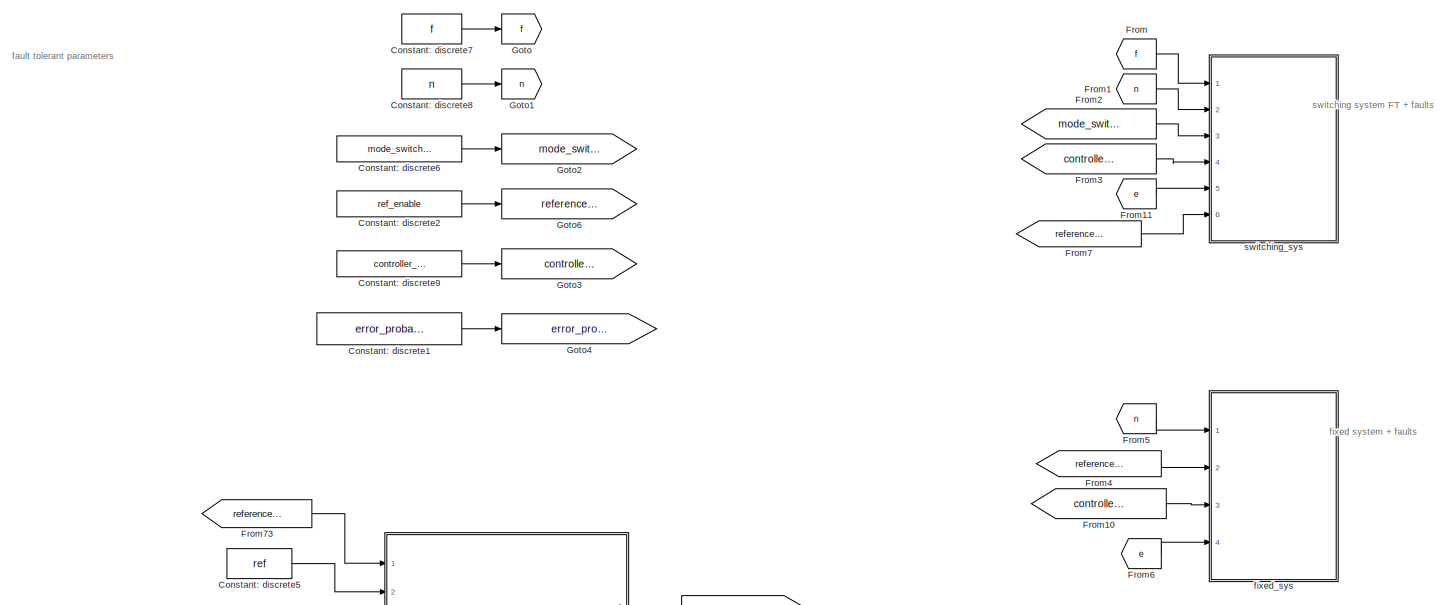
[diagram: root canvas - part 1/2, full width, top band]
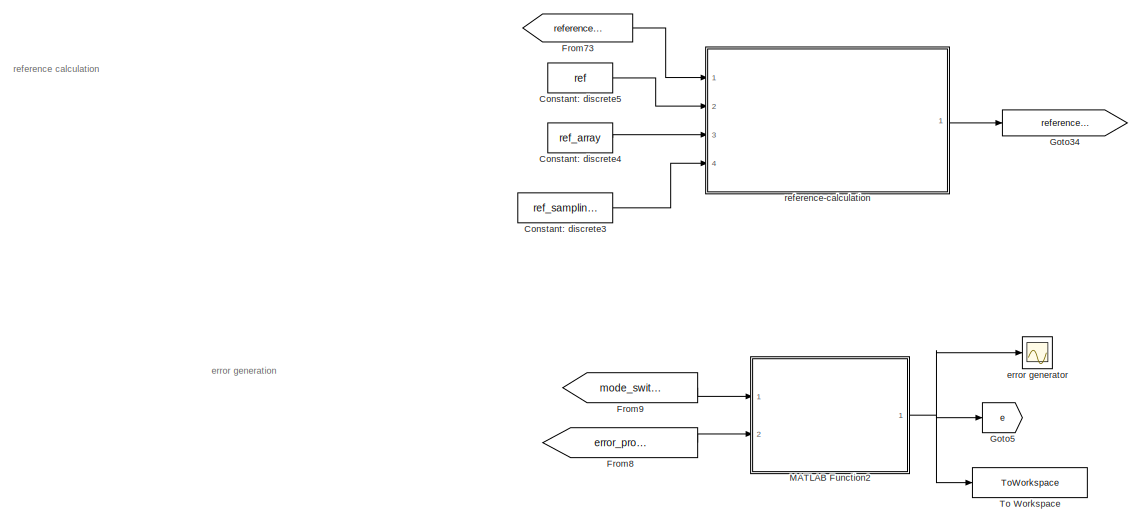
[diagram: root canvas - part 2/2, bottom left region]
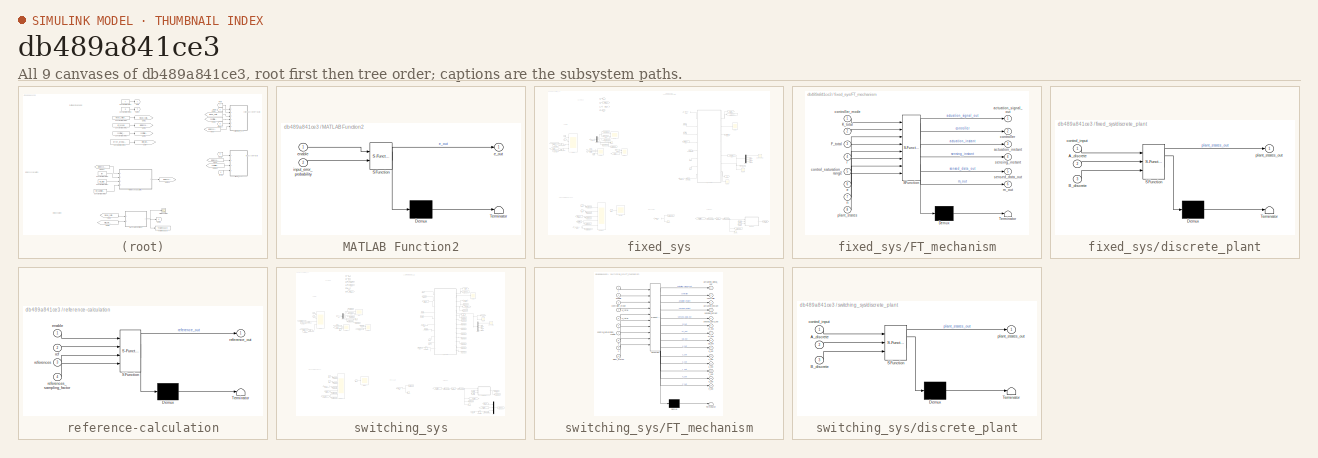
[diagram: thumbnail index - all 9 canvases of the model, root first then tree order]
MODEL slx_db489a841ce3
KIND model
CONFIG AbsTol = auto
CONFIG EnableMultiTasking = off
CONFIG FixedStep = hp
CONFIG MaxStep = auto
CONFIG MinStep = auto
CONFIG RelTol = 1e-3
CONFIG SampleTimeConstraint = Unconstrained
CONFIG SolverName = FixedStepAuto
CONFIG StartTime = 0.0
CONFIG StopTime = Tend
BLOCK [Constant] Constant: discrete1
  SampleTime = Sm
  Value = error_probability
BLOCK [Constant] Constant: discrete2
  SampleTime = Sm
  Value = ref_enable
BLOCK [Constant] Constant: discrete3
  OutDataTypeStr = single
  SampleTime = Sm
  Value = ref_sampling_factor
BLOCK [Constant] Constant: discrete4
  OutDataTypeStr = single
  SampleTime = Sm
  Value = ref_array
BLOCK [Constant] Constant: discrete5
  OutDataTypeStr = single
  SampleTime = Sm
  Value = ref
BLOCK [Constant] Constant: discrete6
  SampleTime = Sm
  Value = mode_switching_enable
BLOCK [Constant] Constant: discrete7
  OutDataTypeStr = single
  SampleTime = Sm
  Value = f
BLOCK [Constant] Constant: discrete8
  OutDataTypeStr = single
  SampleTime = Sm
  Value = n
BLOCK [Constant] Constant: discrete9
  SampleTime = Sm
  Value = controller_mode
BLOCK [From] From
  GotoTag = f
BLOCK [From] From1
  GotoTag = n
BLOCK [From] From10
  GotoTag = controller_mode
BLOCK [From] From11
  GotoTag = e
BLOCK [From] From2
  GotoTag = mode_switching_enable
BLOCK [From] From3
  GotoTag = controller_mode
BLOCK [From] From4
  GotoTag = reference_output
BLOCK [From] From5
  GotoTag = n
BLOCK [From] From6
  GotoTag = e
BLOCK [From] From7
  GotoTag = reference_output
BLOCK [From] From73
  GotoTag = reference_enable
BLOCK [From] From8
  GotoTag = error_probability
BLOCK [From] From9
  GotoTag = mode_switching_enable
BLOCK [Goto] Goto
  GotoTag = f
BLOCK [Goto] Goto1
  GotoTag = n
BLOCK [Goto] Goto2
  GotoTag = mode_switching_enable
BLOCK [Goto] Goto3
  GotoTag = controller_mode
BLOCK [Goto] Goto34
  GotoTag = reference_output
BLOCK [Goto] Goto4
  GotoTag = error_probability
BLOCK [Goto] Goto5
  GotoTag = e
BLOCK [Goto] Goto6
  GotoTag = reference_enable
BLOCK [SubSystem] MATLAB Function2
  ErrorFcn = Stateflow.Translate.translate
  PermitHierarchicalResolution = ExplicitOnly
  Ports = [2, 1]
  RequestExecContextInheritance = off
  SFBlockType = MATLAB Function
  SystemSampleTime = Sm
  TreatAsAtomicUnit = on
BLOCK [Demux] MATLAB Function2/ Demux 
  Outputs = 1
  Ports = [1, 1]
BLOCK [S-Function] MATLAB Function2/ SFunction 
  EnableBusSupport = on
  FunctionName = sf_sfun
  PortCounts = [2 2]
  Ports = [2, 2]
  SFcnIsStateOwnerBlock = off
  SFunctionDeploymentMode = off
  Tag = Stateflow S-Function 21
BLOCK [Terminator] MATLAB Function2/ Terminator 
BLOCK [Outport] MATLAB Function2/e_out
  VectorParamsAs1DForOutWhenUnconnected = off
BLOCK [Inport] MATLAB Function2/enable
BLOCK [Inport] MATLAB Function2/input_error_probability
  Port = 2
BLOCK [ToWorkspace] To Workspace
  FixptAsFi = on
  MaxDataPoints = inf
  Ports = [1]
  SampleTime = Sm
  SaveFormat = Timeseries
  VariableName = error_input_sequence
BLOCK [Scope] error generator 
  Floating = off
  NumInputPorts = 1
  Ports = [1]
  ScopeSpecificationString = Simulink.scopes.TimeScopeBlockCfg('CurrentConfiguration', extmgr.ConfigurationSet(extmgr.Configuration('Core','General UI',true),extmgr.Configuration('Core','Source UI',true),extmgr.Configuration('Sources','WiredSimulink',true,'DataLoggingVariableName','ScopeData2'),extmgr.Configuration('Visuals','Time Domain',true,'SerializedDisplays',{struct('MinYLimReal','-0.10658','MaxYLimReal','1.125','YLabel...<+1469ch>
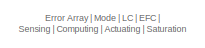
[diagram: fixed_sys - part 1/9, top center region]
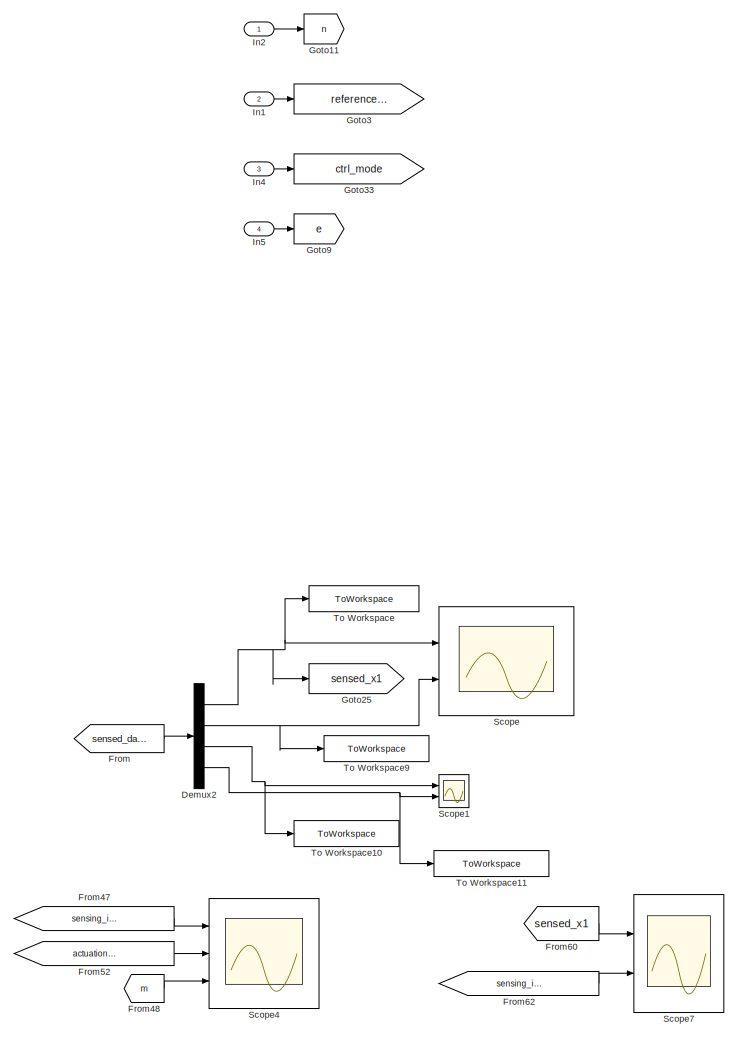
[diagram: fixed_sys - part 2/9, top left region]
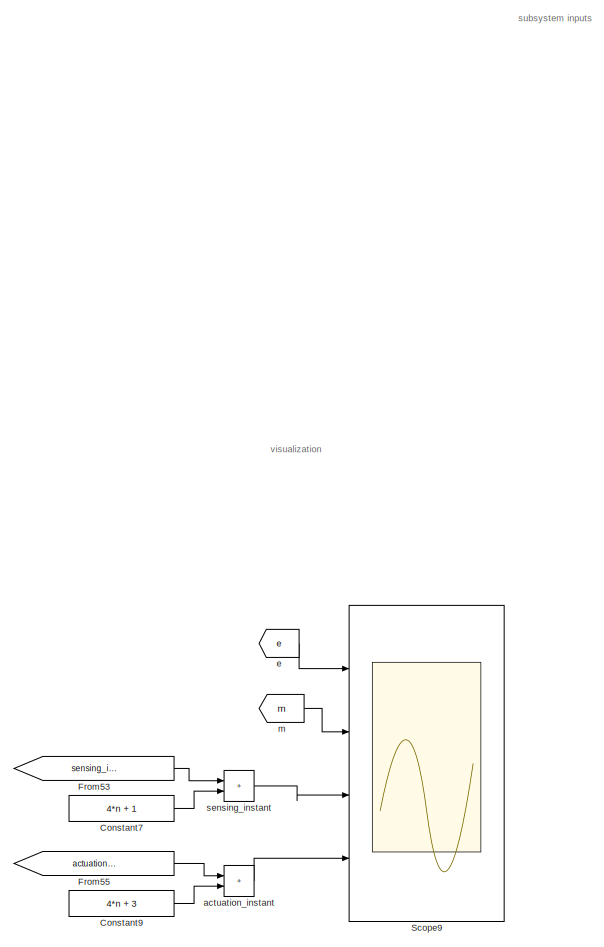
[diagram: fixed_sys - part 3/9, top left region]
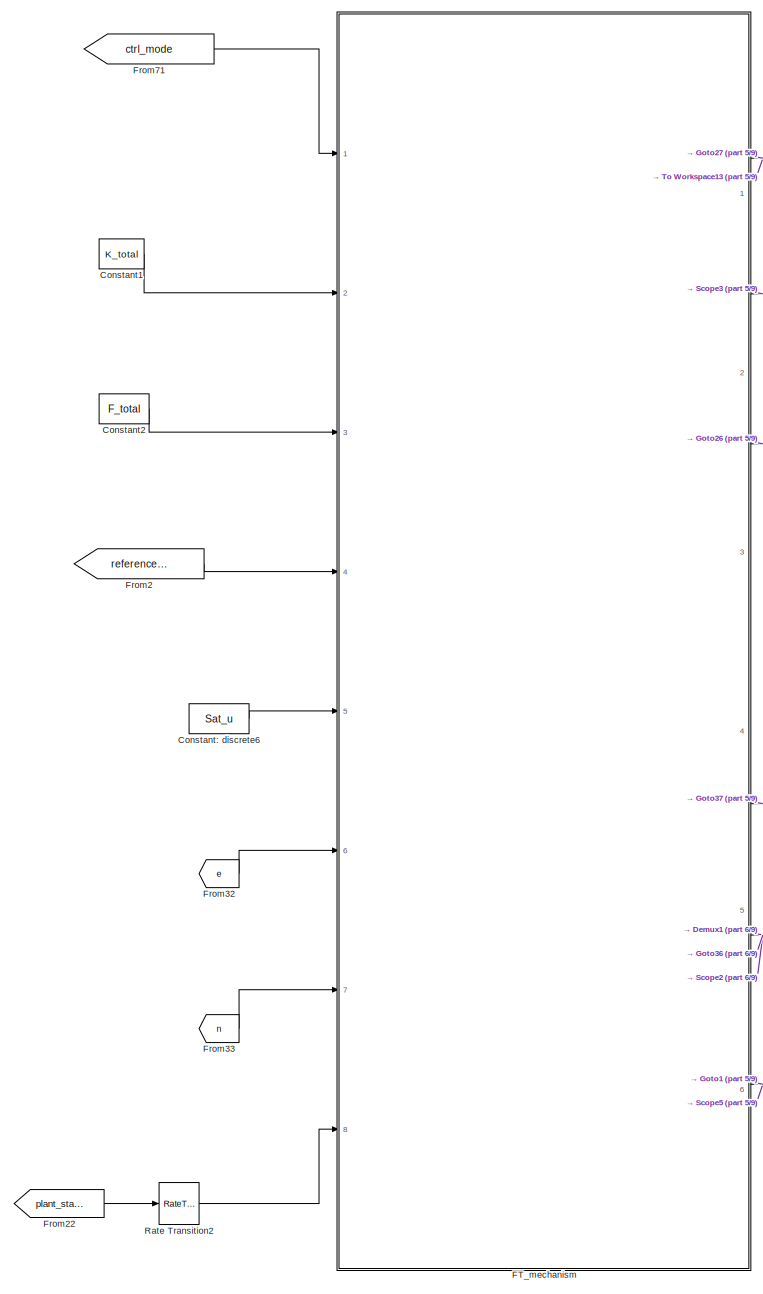
[diagram: fixed_sys - part 4/9, middle right region]
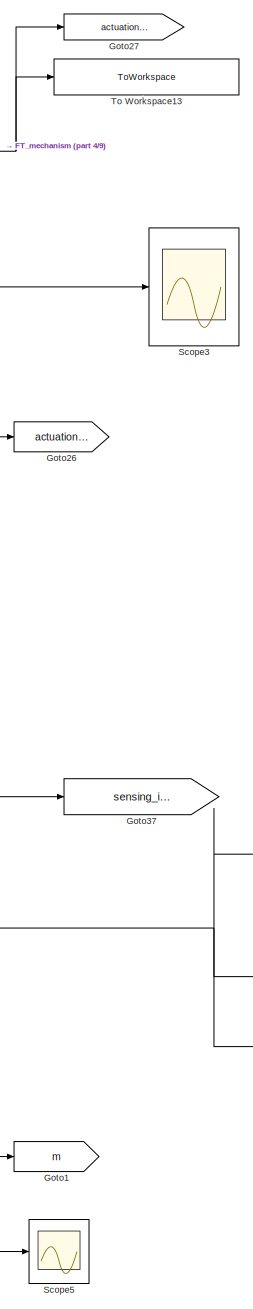
[diagram: fixed_sys - part 5/9, middle right region]
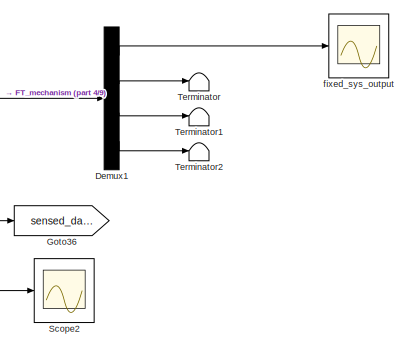
[diagram: fixed_sys - part 6/9, middle right region]
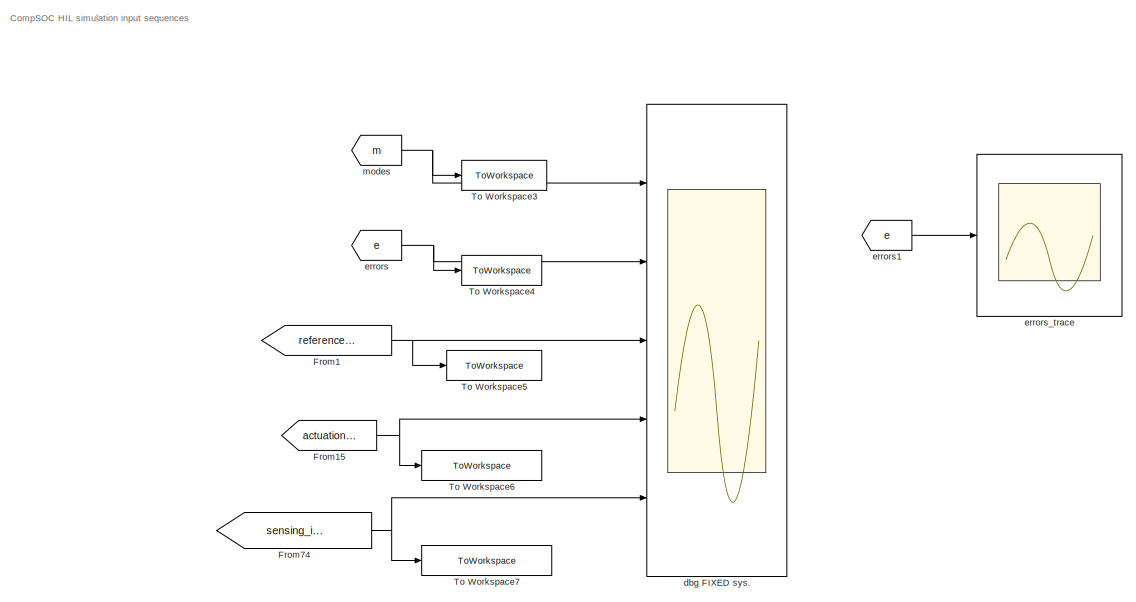
[diagram: fixed_sys - part 7/9, bottom left region]
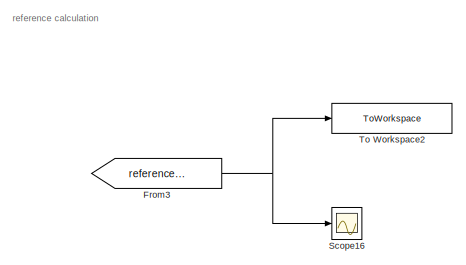
[diagram: fixed_sys - part 8/9, bottom center region]
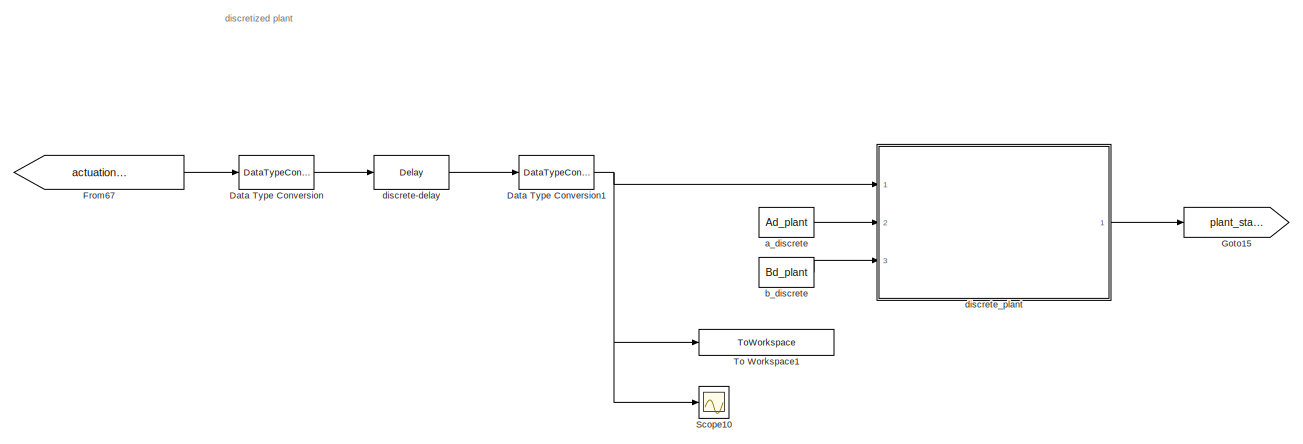
[diagram: fixed_sys - part 9/9, bottom right region]
BLOCK [SubSystem] fixed_sys
  Ports = [4]
  RequestExecContextInheritance = off
BLOCK [Constant] fixed_sys/Constant1
  OutDataTypeStr = single
  SampleTime = Sm
  Value = K_total
BLOCK [Constant] fixed_sys/Constant2
  OutDataTypeStr = single
  SampleTime = Sm
  Value = F_total
BLOCK [Constant] fixed_sys/Constant7
  SampleTime = Sm
  Value = 4*n + 1
BLOCK [Constant] fixed_sys/Constant9
  SampleTime = Sm
  Value = 4*n + 3
BLOCK [Constant] fixed_sys/Constant: discrete6
  OutDataTypeStr = single
  SampleTime = Sm
  Value = Sat_u
BLOCK [DataTypeConversion] fixed_sys/Data Type Conversion
  OutDataTypeStr = double
  RndMeth = Floor
  SaturateOnIntegerOverflow = off
BLOCK [DataTypeConversion] fixed_sys/Data Type Conversion1
  OutDataTypeStr = single
  RndMeth = Floor
  SaturateOnIntegerOverflow = off
BLOCK [Demux] fixed_sys/Demux1
  Ports = [1, 4]
BLOCK [Demux] fixed_sys/Demux2
  Ports = [1, 4]
BLOCK [SubSystem] fixed_sys/FT_mechanism
  ErrorFcn = Stateflow.Translate.translate
  PermitHierarchicalResolution = ExplicitOnly
  Ports = [8, 6]
  RequestExecContextInheritance = off
  SFBlockType = MATLAB Function
  TreatAsAtomicUnit = on
BLOCK [Demux] fixed_sys/FT_mechanism/ Demux 
  Outputs = 1
  Ports = [1, 1]
BLOCK [S-Function] fixed_sys/FT_mechanism/ SFunction 
  EnableBusSupport = on
  FunctionName = sf_sfun
  PortCounts = [8 7]
  Ports = [8, 7]
  SFcnIsStateOwnerBlock = off
  SFunctionDeploymentMode = off
  Tag = Stateflow S-Function 1
BLOCK [Terminator] fixed_sys/FT_mechanism/ Terminator 
BLOCK [Inport] fixed_sys/FT_mechanism/F_total
  Port = 3
BLOCK [Inport] fixed_sys/FT_mechanism/K_total
  Port = 2
BLOCK [Outport] fixed_sys/FT_mechanism/actuation_instant
  Port = 3
  VectorParamsAs1DForOutWhenUnconnected = off
BLOCK [Outport] fixed_sys/FT_mechanism/actuation_signal_out
  VectorParamsAs1DForOutWhenUnconnected = off
BLOCK [Inport] fixed_sys/FT_mechanism/control_saturation_range
  Port = 5
BLOCK [Outport] fixed_sys/FT_mechanism/controller
  Port = 2
  VectorParamsAs1DForOutWhenUnconnected = off
BLOCK [Inport] fixed_sys/FT_mechanism/controller_mode
BLOCK [Inport] fixed_sys/FT_mechanism/e
  Port = 6
BLOCK [Outport] fixed_sys/FT_mechanism/m_out
  Port = 6
  VectorParamsAs1DForOutWhenUnconnected = off
BLOCK [Inport] fixed_sys/FT_mechanism/n
  Port = 7
BLOCK [Inport] fixed_sys/FT_mechanism/plant_states
  Port = 8
BLOCK [Inport] fixed_sys/FT_mechanism/r
  Port = 4
BLOCK [Outport] fixed_sys/FT_mechanism/sensed_data_out
  Port = 5
  VectorParamsAs1DForOutWhenUnconnected = off
BLOCK [Outport] fixed_sys/FT_mechanism/sensing_instant
  Port = 4
  VectorParamsAs1DForOutWhenUnconnected = off
BLOCK [From] fixed_sys/From
  GotoTag = sensed_data
BLOCK [From] fixed_sys/From1
  GotoTag = reference_input
BLOCK [From] fixed_sys/From15
  GotoTag = actuation_instant
BLOCK [From] fixed_sys/From2
  GotoTag = reference_input
BLOCK [From] fixed_sys/From22
  GotoTag = plant_states
BLOCK [From] fixed_sys/From3
  GotoTag = reference_input
BLOCK [From] fixed_sys/From32
  GotoTag = e
BLOCK [From] fixed_sys/From33
  GotoTag = n
BLOCK [From] fixed_sys/From47
  GotoTag = sensing_instant
BLOCK [From] fixed_sys/From48
  GotoTag = m
BLOCK [From] fixed_sys/From52
  GotoTag = actuation_instant
BLOCK [From] fixed_sys/From53
  GotoTag = sensing_instant
BLOCK [From] fixed_sys/From55
  GotoTag = actuation_instant
BLOCK [From] fixed_sys/From60
  GotoTag = sensed_x1
BLOCK [From] fixed_sys/From62
  GotoTag = sensing_instant
BLOCK [From] fixed_sys/From67
  GotoTag = actuation_signal
BLOCK [From] fixed_sys/From71
  GotoTag = ctrl_mode
BLOCK [From] fixed_sys/From74
  GotoTag = sensing_instant
BLOCK [Goto] fixed_sys/Goto1
  GotoTag = m
BLOCK [Goto] fixed_sys/Goto11
  GotoTag = n
BLOCK [Goto] fixed_sys/Goto15
  GotoTag = plant_states
BLOCK [Goto] fixed_sys/Goto25
  GotoTag = sensed_x1
BLOCK [Goto] fixed_sys/Goto26
  GotoTag = actuation_instant
BLOCK [Goto] fixed_sys/Goto27
  GotoTag = actuation_signal
BLOCK [Goto] fixed_sys/Goto3
  GotoTag = reference_input
BLOCK [Goto] fixed_sys/Goto33
  GotoTag = ctrl_mode
BLOCK [Goto] fixed_sys/Goto36
  GotoTag = sensed_data
BLOCK [Goto] fixed_sys/Goto37
  GotoTag = sensing_instant
BLOCK [Goto] fixed_sys/Goto9
  GotoTag = e
BLOCK [Inport] fixed_sys/In1
  Port = 2
BLOCK [Inport] fixed_sys/In2
BLOCK [Inport] fixed_sys/In4
  Port = 3
BLOCK [Inport] fixed_sys/In5
  Port = 4
BLOCK [RateTransition] fixed_sys/Rate Transition2
  OutPortSampleTime = Sm
BLOCK [Scope] fixed_sys/Scope
  Floating = off
  NumInputPorts = 2
  Ports = [2]
  ScopeSpecificationString = Simulink.scopes.TimeScopeBlockCfg('CurrentConfiguration', extmgr.ConfigurationSet(extmgr.Configuration('Core','General UI',true),extmgr.Configuration('Core','Source UI',true),extmgr.Configuration('Sources','WiredSimulink',true,'DataLoggingVariableName','ScopeData1'),extmgr.Configuration('Visuals','Time Domain',true,'SerializedDisplays',{struct('MinYLimReal','-0.04015','MaxYLimReal','0.06015','YLab...<+1471ch>
BLOCK [Scope] fixed_sys/Scope1
  Floating = off
  NumInputPorts = 2
  Ports = [2]
  ScopeSpecificationString = Simulink.scopes.TimeScopeBlockCfg('CurrentConfiguration', extmgr.ConfigurationSet(extmgr.Configuration('Core','General UI',true),extmgr.Configuration('Core','Source UI',true),extmgr.Configuration('Sources','WiredSimulink',true,'DataLoggingVariableName','ScopeData2'),extmgr.Configuration('Visuals','Time Domain',true,'SerializedDisplays',{struct('MinYLimReal','-3499.84616','MaxYLimReal','3633.94748'...<+1444ch>
BLOCK [Scope] fixed_sys/Scope10
  Floating = off
  NumInputPorts = 1
  Ports = [1]
  ScopeSpecificationString = Simulink.scopes.TimeScopeBlockCfg('CurrentConfiguration', extmgr.ConfigurationSet(extmgr.Configuration('Core','General UI',true),extmgr.Configuration('Core','Source UI',true),extmgr.Configuration('Sources','WiredSimulink',true,'DataLoggingVariableName','ScopeData2','SampleTime','S(controller_mode)'),extmgr.Configuration('Visuals','Time Domain',true,'SerializedDisplays',{struct('MinYLimReal','-0.35...<+1487ch>
BLOCK [Scope] fixed_sys/Scope16
  Floating = off
  NumInputPorts = 1
  Ports = [1]
  ScopeSpecificationString = Simulink.scopes.TimeScopeBlockCfg('CurrentConfiguration', extmgr.ConfigurationSet(extmgr.Configuration('Core','General UI',true),extmgr.Configuration('Core','Source UI',true),extmgr.Configuration('Sources','WiredSimulink',true,'DataLoggingVariableName','ScopeData1'),extmgr.Configuration('Visuals','Time Domain',true,'SerializedDisplays',{struct('MinYLimReal','-1.375','MaxYLimReal','2.375','YLabelRe...<+1388ch>
BLOCK [Scope] fixed_sys/Scope2
  Floating = off
  NumInputPorts = 1
  Ports = [1]
  ScopeSpecificationString = Simulink.scopes.TimeScopeBlockCfg('CurrentConfiguration', extmgr.ConfigurationSet(extmgr.Configuration('Core','General UI',true),extmgr.Configuration('Core','Source UI',true),extmgr.Configuration('Sources','WiredSimulink',true,'DataLoggingVariableName','ScopeData1'),extmgr.Configuration('Visuals','Time Domain',true,'SerializedDisplays',{struct('MinYLimReal','-0.61443','MaxYLimReal','0.39931','YLab...<+1561ch>
BLOCK [Scope] fixed_sys/Scope3
  Floating = off
  NumInputPorts = 1
  Ports = [1]
  ScopeSpecificationString = Simulink.scopes.TimeScopeBlockCfg('CurrentConfiguration', extmgr.ConfigurationSet(extmgr.Configuration('Core','General UI',true),extmgr.Configuration('Core','Source UI',true),extmgr.Configuration('Sources','WiredSimulink',true,'DataLoggingVariableName','ScopeData3'),extmgr.Configuration('Visuals','Time Domain',true,'SerializedDisplays',{struct('MinYLimReal','0.9','MaxYLimReal','1.1','YLabelReal','...<+1406ch>
BLOCK [Scope] fixed_sys/Scope4
  Floating = off
  NumInputPorts = 3
  Ports = [3]
  ScopeSpecificationString = Simulink.scopes.TimeScopeBlockCfg('CurrentConfiguration', extmgr.ConfigurationSet(extmgr.Configuration('Core','General UI',true),extmgr.Configuration('Core','Source UI',true),extmgr.Configuration('Sources','WiredSimulink',true,'DataLoggingVariableName','ScopeData1'),extmgr.Configuration('Visuals','Time Domain',true,'SerializedDisplays',{struct('MinYLimReal','-0.375','MaxYLimReal','3.375','YLabelRe...<+1489ch>
BLOCK [Scope] fixed_sys/Scope5
  Floating = off
  NumInputPorts = 1
  Ports = [1]
  ScopeSpecificationString = Simulink.scopes.TimeScopeBlockCfg('CurrentConfiguration', extmgr.ConfigurationSet(extmgr.Configuration('Core','General UI',true),extmgr.Configuration('Core','Source UI',true),extmgr.Configuration('Sources','WiredSimulink',true,'DataLoggingVariableName','ScopeData1'),extmgr.Configuration('Visuals','Time Domain',true,'SerializedDisplays',{struct('MinYLimReal','2.00000','MaxYLimReal','4.00000','YLabe...<+1448ch>
BLOCK [Scope] fixed_sys/Scope7
  Floating = off
  NumInputPorts = 2
  Ports = [2]
  ScopeSpecificationString = Simulink.scopes.TimeScopeBlockCfg('CurrentConfiguration', extmgr.ConfigurationSet(extmgr.Configuration('Core','General UI',true),extmgr.Configuration('Core','Source UI',true),extmgr.Configuration('Sources','WiredSimulink',true,'DataLoggingVariableName','ScopeData1'),extmgr.Configuration('Visuals','Time Domain',true,'SerializedDisplays',{struct('MinYLimReal','-0.15888','MaxYLimReal','1.12876','YLab...<+1478ch>
BLOCK [Scope] fixed_sys/Scope9
  Floating = off
  NumInputPorts = 4
  Ports = [4]
  ScopeSpecificationString = Simulink.scopes.TimeScopeBlockCfg('CurrentConfiguration', extmgr.ConfigurationSet(extmgr.Configuration('Core','General UI',true),extmgr.Configuration('Core','Source UI',true),extmgr.Configuration('Sources','WiredSimulink',true,'DataLoggingVariableName','ScopeData1'),extmgr.Configuration('Visuals','Time Domain',true,'SerializedDisplays',{struct('MinYLimReal','-2.00000','MaxYLimReal','18.00000','YLa...<+1520ch>
BLOCK [Terminator] fixed_sys/Terminator
BLOCK [Terminator] fixed_sys/Terminator1
BLOCK [Terminator] fixed_sys/Terminator2
BLOCK [ToWorkspace] fixed_sys/To Workspace
  FixptAsFi = on
  MaxDataPoints = inf
  Ports = [1]
  SampleTime = Sm
  SaveFormat = Timeseries
  VariableName = sensed_data_x1_fixed
BLOCK [ToWorkspace] fixed_sys/To Workspace1
  FixptAsFi = on
  MaxDataPoints = inf
  Ports = [1]
  SampleTime = Sm
  SaveFormat = Timeseries
  VariableName = actuation_signal_u_fixed
BLOCK [ToWorkspace] fixed_sys/To Workspace10
  FixptAsFi = on
  MaxDataPoints = inf
  Ports = [1]
  SampleTime = Sm
  SaveFormat = Timeseries
  VariableName = sensed_data_x3_fixed
BLOCK [ToWorkspace] fixed_sys/To Workspace11
  FixptAsFi = on
  MaxDataPoints = inf
  Ports = [1]
  SampleTime = Sm
  SaveFormat = Timeseries
  VariableName = sensed_data_x4_fixed
BLOCK [ToWorkspace] fixed_sys/To Workspace13
  FixptAsFi = on
  MaxDataPoints = inf
  Ports = [1]
  SampleTime = Sm
  SaveFormat = Timeseries
  VariableName = actuation_signal_fixed
BLOCK [ToWorkspace] fixed_sys/To Workspace2
  FixptAsFi = on
  MaxDataPoints = inf
  Ports = [1]
  SampleTime = Sm
  SaveFormat = Timeseries
  VariableName = reference_output_fixed
BLOCK [ToWorkspace] fixed_sys/To Workspace3
  FixptAsFi = on
  MaxDataPoints = inf
  Ports = [1]
  SampleTime = Sm
  SaveFormat = Timeseries
  VariableName = ws_modes_fixed
BLOCK [ToWorkspace] fixed_sys/To Workspace4
  FixptAsFi = on
  MaxDataPoints = inf
  Ports = [1]
  SampleTime = Sm
  SaveFormat = Timeseries
  VariableName = ws_errors_fixed
BLOCK [ToWorkspace] fixed_sys/To Workspace5
  FixptAsFi = on
  MaxDataPoints = inf
  Ports = [1]
  SampleTime = Sm
  SaveFormat = Timeseries
  VariableName = ws_reference_fixed
BLOCK [ToWorkspace] fixed_sys/To Workspace6
  FixptAsFi = on
  MaxDataPoints = inf
  Ports = [1]
  SampleTime = Sm
  SaveFormat = Timeseries
  VariableName = ws_actuation_instant_fixed
BLOCK [ToWorkspace] fixed_sys/To Workspace7
  FixptAsFi = on
  MaxDataPoints = inf
  Ports = [1]
  SampleTime = Sm
  SaveFormat = Timeseries
  VariableName = ws_sensing_instant_fixed
BLOCK [ToWorkspace] fixed_sys/To Workspace9
  FixptAsFi = on
  MaxDataPoints = inf
  Ports = [1]
  SampleTime = Sm
  SaveFormat = Timeseries
  VariableName = sensed_data_x2_fixed
BLOCK [Constant] fixed_sys/a_discrete
  OutDataTypeStr = single
  SampleTime = hp
  Value = Ad_plant
BLOCK [Sum] fixed_sys/actuation_instant
  IconShape = rectangular
  Ports = [2, 1]
BLOCK [Constant] fixed_sys/b_discrete
  OutDataTypeStr = single
  SampleTime = hp
  Value = Bd_plant
BLOCK [Scope] fixed_sys/dbg FIXED sys.
  Floating = off
  NumInputPorts = 5
  Ports = [5]
  ScopeSpecificationString = Simulink.scopes.TimeScopeBlockCfg('CurrentConfiguration', extmgr.ConfigurationSet(extmgr.Configuration('Core','General UI',true),extmgr.Configuration('Core','Source UI',true),extmgr.Configuration('Sources','WiredSimulink',true,'DataLoggingVariableName','ScopeData1'),extmgr.Configuration('Visuals','Time Domain',true,'SerializedDisplays',{struct('MinYLimReal','-0.24372','MaxYLimReal','2.35116','YLab...<+1644ch>
BLOCK [Delay] fixed_sys/discrete-delay
  DelayLength = delay_length
  InputPortMap = u0
  Ports = [1, 1]
  SampleTime = hp
BLOCK [SubSystem] fixed_sys/discrete_plant
  ErrorFcn = Stateflow.Translate.translate
  PermitHierarchicalResolution = ExplicitOnly
  Ports = [3, 1]
  RequestExecContextInheritance = off
  SFBlockType = MATLAB Function
  SystemSampleTime = hp
  TreatAsAtomicUnit = on
BLOCK [Demux] fixed_sys/discrete_plant/ Demux 
  Outputs = 1
  Ports = [1, 1]
BLOCK [S-Function] fixed_sys/discrete_plant/ SFunction 
  EnableBusSupport = on
  FunctionName = sf_sfun
  PortCounts = [3 2]
  Ports = [3, 2]
  SFcnIsStateOwnerBlock = off
  SFunctionDeploymentMode = off
  Tag = Stateflow S-Function 2
BLOCK [Terminator] fixed_sys/discrete_plant/ Terminator 
BLOCK [Inport] fixed_sys/discrete_plant/A_discrete
  Port = 2
BLOCK [Inport] fixed_sys/discrete_plant/B_discrete
  Port = 3
BLOCK [Inport] fixed_sys/discrete_plant/control_input
BLOCK [Outport] fixed_sys/discrete_plant/plant_states_out
  VectorParamsAs1DForOutWhenUnconnected = off
BLOCK [From] fixed_sys/e
  GotoTag = e
BLOCK [From] fixed_sys/errors
  GotoTag = e
BLOCK [From] fixed_sys/errors1
  GotoTag = e
BLOCK [Scope] fixed_sys/errors_trace
  Floating = off
  NumInputPorts = 1
  Ports = [1]
  ScopeSpecificationString = Simulink.scopes.TimeScopeBlockCfg('CurrentConfiguration', extmgr.ConfigurationSet(extmgr.Configuration('Core','General UI',true),extmgr.Configuration('Core','Source UI',true),extmgr.Configuration('Sources','WiredSimulink',true,'DataLoggingVariableName','ScopeData1'),extmgr.Configuration('Visuals','Time Domain',true,'SerializedDisplays',{struct('MinYLimReal','-0.125','MaxYLimReal','1.125','YLabelRe...<+1444ch>
BLOCK [Scope] fixed_sys/fixed_sys_output 
  Floating = off
  NumInputPorts = 1
  Ports = [1]
  ScopeSpecificationString = Simulink.scopes.TimeScopeBlockCfg('CurrentConfiguration', extmgr.ConfigurationSet(extmgr.Configuration('Core','General UI',true),extmgr.Configuration('Core','Source UI',true),extmgr.Configuration('Sources','WiredSimulink',true,'DataLoggingVariableName','ScopeData1'),extmgr.Configuration('Visuals','Time Domain',true,'SerializedDisplays',{struct('MinYLimReal','-67.91508','MaxYLimReal','78.67006','YL...<+1483ch>
BLOCK [From] fixed_sys/m
  GotoTag = m
BLOCK [From] fixed_sys/modes
  GotoTag = m
BLOCK [Sum] fixed_sys/sensing_instant
  IconShape = rectangular
  Ports = [2, 1]
BLOCK [SubSystem] reference-calculation
  ErrorFcn = Stateflow.Translate.translate
  PermitHierarchicalResolution = ExplicitOnly
  Ports = [4, 1]
  RequestExecContextInheritance = off
  SFBlockType = MATLAB Function
  TreatAsAtomicUnit = on
BLOCK [Demux] reference-calculation/ Demux 
  Outputs = 1
  Ports = [1, 1]
BLOCK [S-Function] reference-calculation/ SFunction 
  EnableBusSupport = on
  FunctionName = sf_sfun
  PortCounts = [4 2]
  Ports = [4, 2]
  SFcnIsStateOwnerBlock = off
  SFunctionDeploymentMode = off
  Tag = Stateflow S-Function 5
BLOCK [Terminator] reference-calculation/ Terminator 
BLOCK [Inport] reference-calculation/enable
BLOCK [Inport] reference-calculation/ref
  Port = 2
BLOCK [Outport] reference-calculation/reference_out
  VectorParamsAs1DForOutWhenUnconnected = off
BLOCK [Inport] reference-calculation/references
  Port = 3
BLOCK [Inport] reference-calculation/references_sampling_factor
  Port = 4
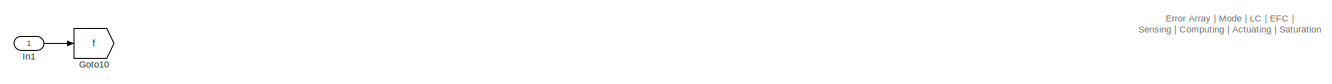
[diagram: switching_sys - part 1/9, top center region]
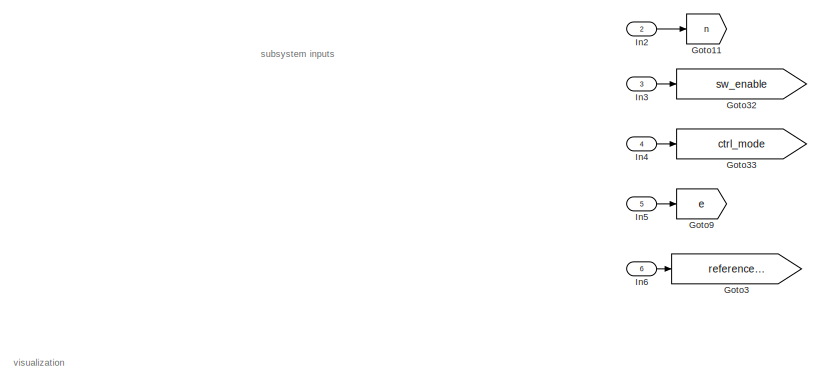
[diagram: switching_sys - part 2/9, top left region]
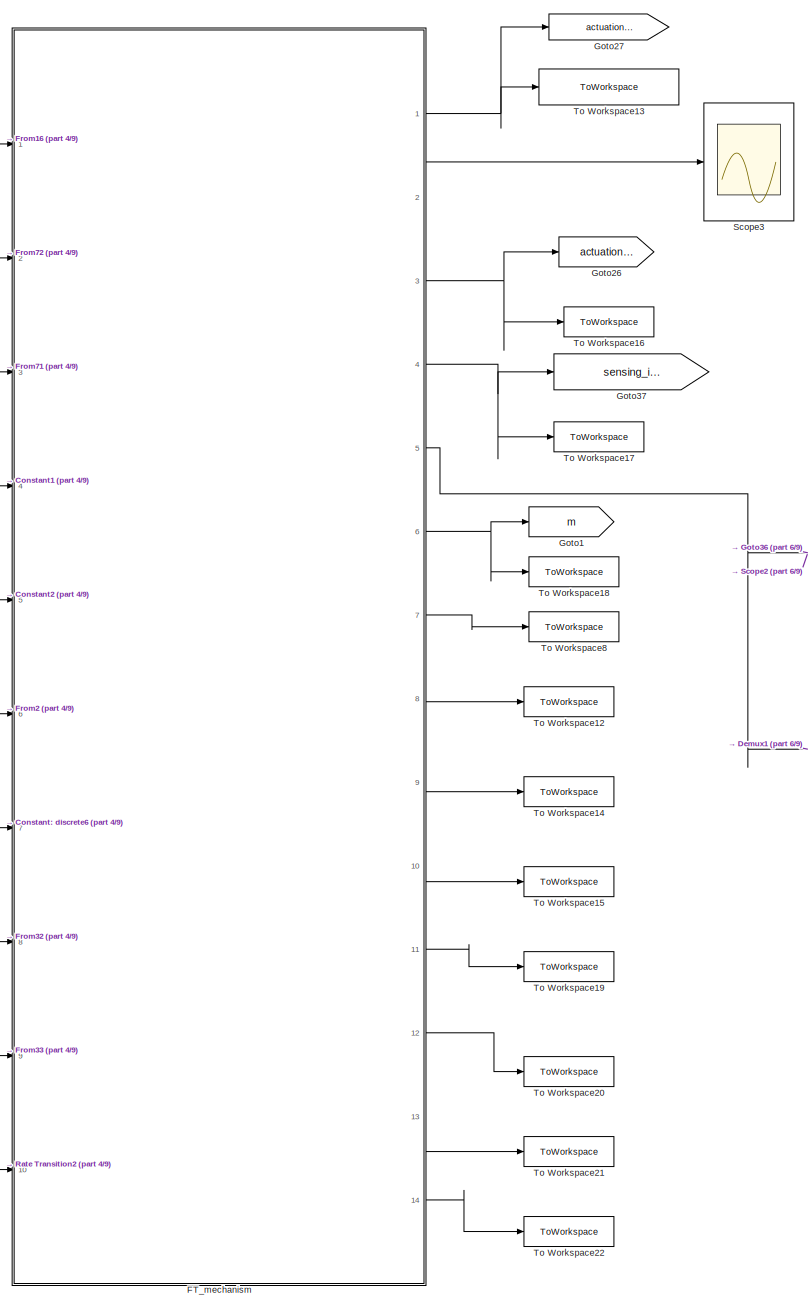
[diagram: switching_sys - part 3/9, middle right region]
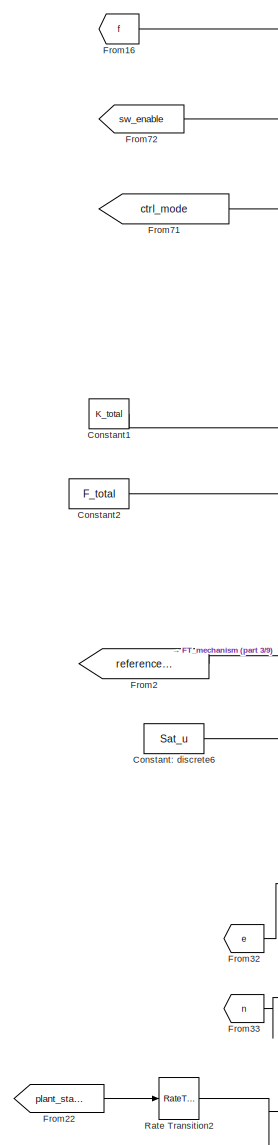
[diagram: switching_sys - part 4/9, central region]
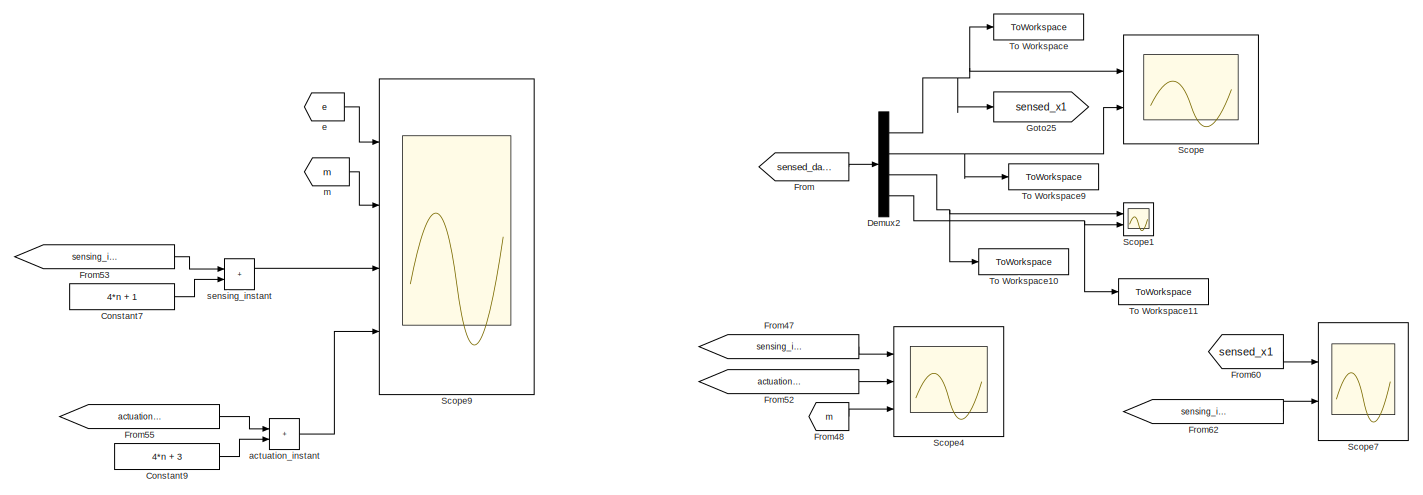
[diagram: switching_sys - part 5/9, middle left region]
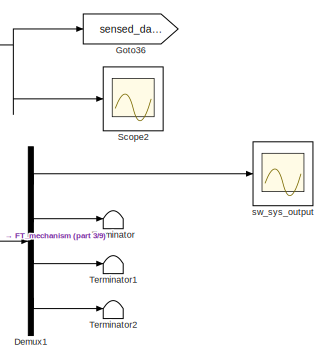
[diagram: switching_sys - part 6/9, middle right region]
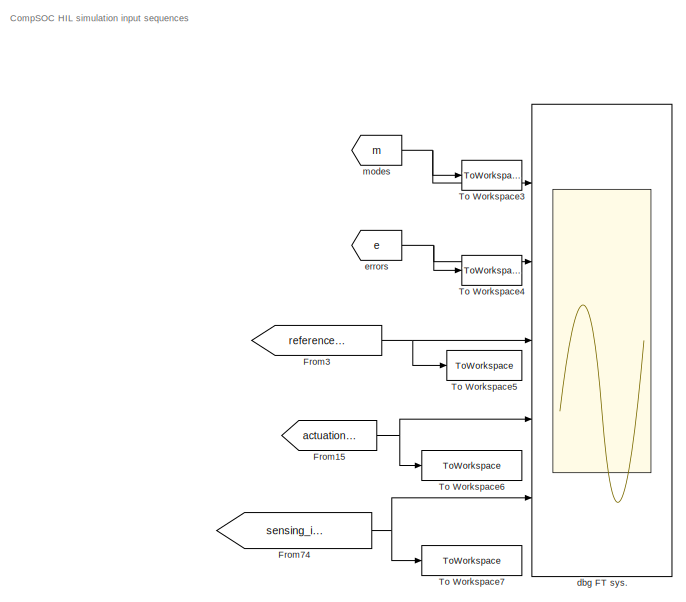
[diagram: switching_sys - part 7/9, bottom left region]
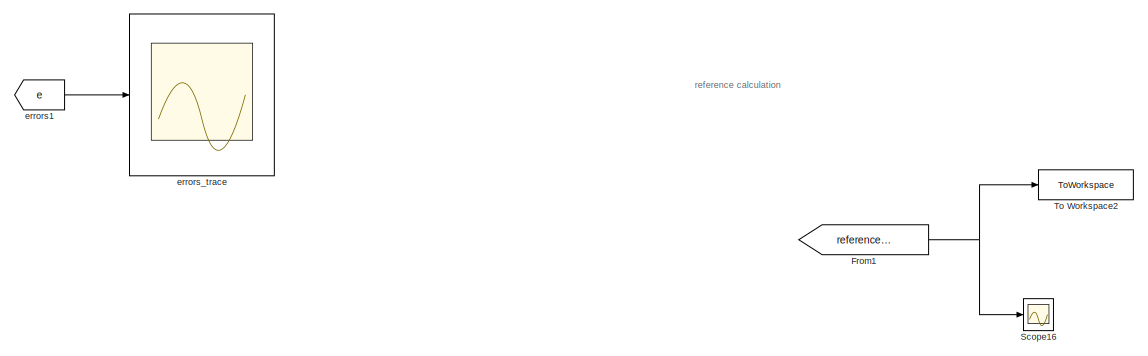
[diagram: switching_sys - part 8/9, bottom center region]
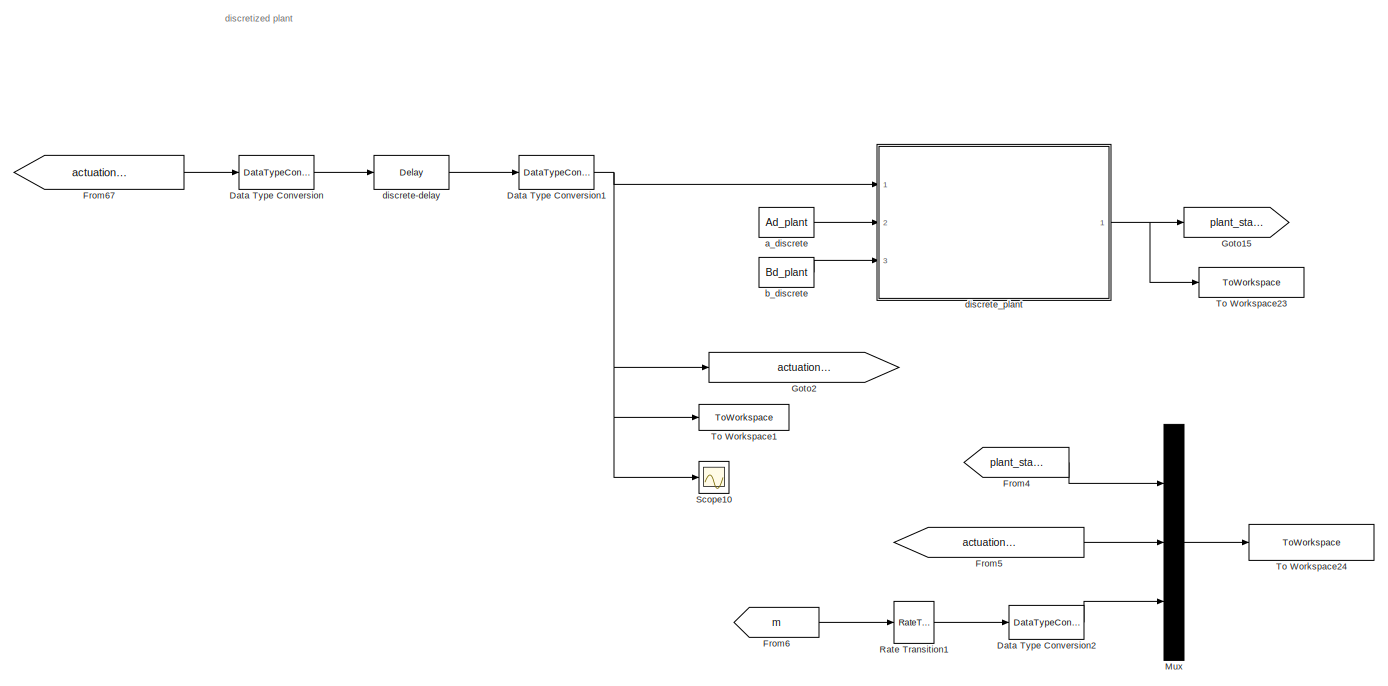
[diagram: switching_sys - part 9/9, bottom right region]
BLOCK [SubSystem] switching_sys
  Ports = [6]
  RequestExecContextInheritance = off
BLOCK [Constant] switching_sys/Constant1
  OutDataTypeStr = single
  SampleTime = Sm
  Value = K_total
BLOCK [Constant] switching_sys/Constant2
  OutDataTypeStr = single
  SampleTime = Sm
  Value = F_total
BLOCK [Constant] switching_sys/Constant7
  SampleTime = Sm
  Value = 4*n + 1
BLOCK [Constant] switching_sys/Constant9
  SampleTime = Sm
  Value = 4*n + 3
BLOCK [Constant] switching_sys/Constant: discrete6
  OutDataTypeStr = single
  SampleTime = Sm
  Value = Sat_u
BLOCK [DataTypeConversion] switching_sys/Data Type Conversion
  OutDataTypeStr = double
  RndMeth = Floor
  SaturateOnIntegerOverflow = off
BLOCK [DataTypeConversion] switching_sys/Data Type Conversion1
  OutDataTypeStr = single
  RndMeth = Floor
  SaturateOnIntegerOverflow = off
BLOCK [DataTypeConversion] switching_sys/Data Type Conversion2
  OutDataTypeStr = single
  RndMeth = Floor
  SaturateOnIntegerOverflow = off
BLOCK [Demux] switching_sys/Demux1
  Ports = [1, 4]
BLOCK [Demux] switching_sys/Demux2
  Ports = [1, 4]
BLOCK [SubSystem] switching_sys/FT_mechanism
  ErrorFcn = Stateflow.Translate.translate
  PermitHierarchicalResolution = ExplicitOnly
  Ports = [10, 14]
  RequestExecContextInheritance = off
  SFBlockType = MATLAB Function
  TreatAsAtomicUnit = on
BLOCK [Demux] switching_sys/FT_mechanism/ Demux 
  Outputs = 1
  Ports = [1, 1]
BLOCK [S-Function] switching_sys/FT_mechanism/ SFunction 
  EnableBusSupport = on
  FunctionName = sf_sfun
  PortCounts = [10 15]
  Ports = [10, 15]
  SFcnIsStateOwnerBlock = off
  SFunctionDeploymentMode = off
  Tag = Stateflow S-Function 6
BLOCK [Terminator] switching_sys/FT_mechanism/ Terminator 
BLOCK [Outport] switching_sys/FT_mechanism/F_out
  Port = 14
BLOCK [Inport] switching_sys/FT_mechanism/F_total
  Port = 5
BLOCK [Outport] switching_sys/FT_mechanism/K_out
  Port = 13
BLOCK [Inport] switching_sys/FT_mechanism/K_total
  Port = 4
BLOCK [Outport] switching_sys/FT_mechanism/actuation_instant
  Port = 3
  VectorParamsAs1DForOutWhenUnconnected = off
BLOCK [Outport] switching_sys/FT_mechanism/actuation_signal_out
  VectorParamsAs1DForOutWhenUnconnected = off
BLOCK [Inport] switching_sys/FT_mechanism/control_saturation_range
  Port = 7
BLOCK [Outport] switching_sys/FT_mechanism/controller
  Port = 2
  VectorParamsAs1DForOutWhenUnconnected = off
BLOCK [Inport] switching_sys/FT_mechanism/controller_mode
  Port = 3
BLOCK [Inport] switching_sys/FT_mechanism/e
  Port = 8
BLOCK [Inport] switching_sys/FT_mechanism/enable
  Port = 2
BLOCK [Inport] switching_sys/FT_mechanism/f
BLOCK [Outport] switching_sys/FT_mechanism/k_out
  Port = 11
BLOCK [Outport] switching_sys/FT_mechanism/m_out
  Port = 6
  VectorParamsAs1DForOutWhenUnconnected = off
BLOCK [Inport] switching_sys/FT_mechanism/n
  Port = 9
BLOCK [Inport] switching_sys/FT_mechanism/plant_states
  Port = 10
BLOCK [Inport] switching_sys/FT_mechanism/r
  Port = 6
BLOCK [Outport] switching_sys/FT_mechanism/r_out
  Port = 12
BLOCK [Outport] switching_sys/FT_mechanism/sensed_data_out
  Port = 5
  VectorParamsAs1DForOutWhenUnconnected = off
BLOCK [Outport] switching_sys/FT_mechanism/sensing_instant
  Port = 4
  VectorParamsAs1DForOutWhenUnconnected = off
BLOCK [Outport] switching_sys/FT_mechanism/uA_out
  Port = 7
BLOCK [Outport] switching_sys/FT_mechanism/uB_out
  Port = 8
BLOCK [Outport] switching_sys/FT_mechanism/u_out
  Port = 9
BLOCK [Outport] switching_sys/FT_mechanism/z_out
  Port = 10
BLOCK [From] switching_sys/From
  GotoTag = sensed_data
BLOCK [From] switching_sys/From1
  GotoTag = reference_input
BLOCK [From] switching_sys/From15
  GotoTag = actuation_instant
BLOCK [From] switching_sys/From16
  GotoTag = f
BLOCK [From] switching_sys/From2
  GotoTag = reference_input
BLOCK [From] switching_sys/From22
  GotoTag = plant_states
BLOCK [From] switching_sys/From3
  GotoTag = reference_input
BLOCK [From] switching_sys/From32
  GotoTag = e
BLOCK [From] switching_sys/From33
  GotoTag = n
BLOCK [From] switching_sys/From4
  GotoTag = plant_states
BLOCK [From] switching_sys/From47
  GotoTag = sensing_instant
BLOCK [From] switching_sys/From48
  GotoTag = m
BLOCK [From] switching_sys/From5
  GotoTag = actuation_signal_at_plant
BLOCK [From] switching_sys/From52
  GotoTag = actuation_instant
BLOCK [From] switching_sys/From53
  GotoTag = sensing_instant
BLOCK [From] switching_sys/From55
  GotoTag = actuation_instant
BLOCK [From] switching_sys/From6
  GotoTag = m
BLOCK [From] switching_sys/From60
  GotoTag = sensed_x1
BLOCK [From] switching_sys/From62
  GotoTag = sensing_instant
BLOCK [From] switching_sys/From67
  GotoTag = actuation_signal
BLOCK [From] switching_sys/From71
  GotoTag = ctrl_mode
BLOCK [From] switching_sys/From72
  GotoTag = sw_enable
BLOCK [From] switching_sys/From74
  GotoTag = sensing_instant
BLOCK [Goto] switching_sys/Goto1
  GotoTag = m
BLOCK [Goto] switching_sys/Goto10
  GotoTag = f
BLOCK [Goto] switching_sys/Goto11
  GotoTag = n
BLOCK [Goto] switching_sys/Goto15
  GotoTag = plant_states
BLOCK [Goto] switching_sys/Goto2
  GotoTag = actuation_signal_at_plant
BLOCK [Goto] switching_sys/Goto25
  GotoTag = sensed_x1
BLOCK [Goto] switching_sys/Goto26
  GotoTag = actuation_instant
BLOCK [Goto] switching_sys/Goto27
  GotoTag = actuation_signal
BLOCK [Goto] switching_sys/Goto3
  GotoTag = reference_input
BLOCK [Goto] switching_sys/Goto32
  GotoTag = sw_enable
BLOCK [Goto] switching_sys/Goto33
  GotoTag = ctrl_mode
BLOCK [Goto] switching_sys/Goto36
  GotoTag = sensed_data
BLOCK [Goto] switching_sys/Goto37
  GotoTag = sensing_instant
BLOCK [Goto] switching_sys/Goto9
  GotoTag = e
BLOCK [Inport] switching_sys/In1
BLOCK [Inport] switching_sys/In2
  Port = 2
BLOCK [Inport] switching_sys/In3
  Port = 3
BLOCK [Inport] switching_sys/In4
  Port = 4
BLOCK [Inport] switching_sys/In5
  Port = 5
BLOCK [Inport] switching_sys/In6
  Port = 6
BLOCK [Mux] switching_sys/Mux
  DisplayOption = bar
  Inputs = 3
  Ports = [3, 1]
BLOCK [RateTransition] switching_sys/Rate Transition1
  OutPortSampleTime = hp
BLOCK [RateTransition] switching_sys/Rate Transition2
  OutPortSampleTime = Sm
BLOCK [Scope] switching_sys/Scope
  Floating = off
  NumInputPorts = 2
  Ports = [2]
  ScopeSpecificationString = Simulink.scopes.TimeScopeBlockCfg('CurrentConfiguration', extmgr.ConfigurationSet(extmgr.Configuration('Core','General UI',true),extmgr.Configuration('Core','Source UI',true),extmgr.Configuration('Sources','WiredSimulink',true,'DataLoggingVariableName','ScopeData1'),extmgr.Configuration('Visuals','Time Domain',true,'SerializedDisplays',{struct('MinYLimReal','-0.04015','MaxYLimReal','0.06015','YLab...<+1471ch>
BLOCK [Scope] switching_sys/Scope1
  Floating = off
  NumInputPorts = 2
  Ports = [2]
  ScopeSpecificationString = Simulink.scopes.TimeScopeBlockCfg('CurrentConfiguration', extmgr.ConfigurationSet(extmgr.Configuration('Core','General UI',true),extmgr.Configuration('Core','Source UI',true),extmgr.Configuration('Sources','WiredSimulink',true,'DataLoggingVariableName','ScopeData2'),extmgr.Configuration('Visuals','Time Domain',true,'SerializedDisplays',{struct('MinYLimReal','-3499.84616','MaxYLimReal','3633.94748'...<+1444ch>
BLOCK [Scope] switching_sys/Scope10
  Floating = off
  NumInputPorts = 1
  Ports = [1]
  ScopeSpecificationString = Simulink.scopes.TimeScopeBlockCfg('CurrentConfiguration', extmgr.ConfigurationSet(extmgr.Configuration('Core','General UI',true),extmgr.Configuration('Core','Source UI',true),extmgr.Configuration('Sources','WiredSimulink',true,'DataLoggingVariableName','ScopeData2','SampleTime','S(controller_mode)'),extmgr.Configuration('Visuals','Time Domain',true,'SerializedDisplays',{struct('MinYLimReal','-0.35...<+1487ch>
BLOCK [Scope] switching_sys/Scope16
  Floating = off
  NumInputPorts = 1
  Ports = [1]
  ScopeSpecificationString = Simulink.scopes.TimeScopeBlockCfg('CurrentConfiguration', extmgr.ConfigurationSet(extmgr.Configuration('Core','General UI',true),extmgr.Configuration('Core','Source UI',true),extmgr.Configuration('Sources','WiredSimulink',true,'DataLoggingVariableName','ScopeData1'),extmgr.Configuration('Visuals','Time Domain',true,'SerializedDisplays',{struct('MinYLimReal','-1.375','MaxYLimReal','2.375','YLabelRe...<+1388ch>
BLOCK [Scope] switching_sys/Scope2
  Floating = off
  NumInputPorts = 1
  Ports = [1]
  ScopeSpecificationString = Simulink.scopes.TimeScopeBlockCfg('CurrentConfiguration', extmgr.ConfigurationSet(extmgr.Configuration('Core','General UI',true),extmgr.Configuration('Core','Source UI',true),extmgr.Configuration('Sources','WiredSimulink',true,'DataLoggingVariableName','ScopeData1'),extmgr.Configuration('Visuals','Time Domain',true,'SerializedDisplays',{struct('MinYLimReal','-0.61443','MaxYLimReal','0.39931','YLab...<+1561ch>
BLOCK [Scope] switching_sys/Scope3
  Floating = off
  NumInputPorts = 1
  Ports = [1]
  ScopeSpecificationString = Simulink.scopes.TimeScopeBlockCfg('CurrentConfiguration', extmgr.ConfigurationSet(extmgr.Configuration('Core','General UI',true),extmgr.Configuration('Core','Source UI',true),extmgr.Configuration('Sources','WiredSimulink',true,'DataLoggingVariableName','ScopeData3'),extmgr.Configuration('Visuals','Time Domain',true,'SerializedDisplays',{struct('MinYLimReal','0.9','MaxYLimReal','1.1','YLabelReal','...<+1392ch>
BLOCK [Scope] switching_sys/Scope4
  Floating = off
  NumInputPorts = 3
  Ports = [3]
  ScopeSpecificationString = Simulink.scopes.TimeScopeBlockCfg('CurrentConfiguration', extmgr.ConfigurationSet(extmgr.Configuration('Core','General UI',true),extmgr.Configuration('Core','Source UI',true),extmgr.Configuration('Sources','WiredSimulink',true,'DataLoggingVariableName','ScopeData1'),extmgr.Configuration('Visuals','Time Domain',true,'SerializedDisplays',{struct('MinYLimReal','-0.375','MaxYLimReal','3.375','YLabelRe...<+1489ch>
BLOCK [Scope] switching_sys/Scope7
  Floating = off
  NumInputPorts = 2
  Ports = [2]
  ScopeSpecificationString = Simulink.scopes.TimeScopeBlockCfg('CurrentConfiguration', extmgr.ConfigurationSet(extmgr.Configuration('Core','General UI',true),extmgr.Configuration('Core','Source UI',true),extmgr.Configuration('Sources','WiredSimulink',true,'DataLoggingVariableName','ScopeData1'),extmgr.Configuration('Visuals','Time Domain',true,'SerializedDisplays',{struct('MinYLimReal','-0.15888','MaxYLimReal','1.12876','YLab...<+1478ch>
BLOCK [Scope] switching_sys/Scope9
  Floating = off
  NumInputPorts = 4
  Ports = [4]
  ScopeSpecificationString = Simulink.scopes.TimeScopeBlockCfg('CurrentConfiguration', extmgr.ConfigurationSet(extmgr.Configuration('Core','General UI',true),extmgr.Configuration('Core','Source UI',true),extmgr.Configuration('Sources','WiredSimulink',true,'DataLoggingVariableName','ScopeData1'),extmgr.Configuration('Visuals','Time Domain',true,'SerializedDisplays',{struct('MinYLimReal','-2.00000','MaxYLimReal','18.00000','YLa...<+1528ch>
BLOCK [Terminator] switching_sys/Terminator
BLOCK [Terminator] switching_sys/Terminator1
BLOCK [Terminator] switching_sys/Terminator2
BLOCK [ToWorkspace] switching_sys/To Workspace
  FixptAsFi = on
  MaxDataPoints = inf
  Ports = [1]
  SampleTime = Sm
  SaveFormat = Timeseries
  VariableName = sensed_data_x1
BLOCK [ToWorkspace] switching_sys/To Workspace1
  FixptAsFi = on
  MaxDataPoints = inf
  Ports = [1]
  SampleTime = Sm
  SaveFormat = Timeseries
  VariableName = actuation_signal_u
BLOCK [ToWorkspace] switching_sys/To Workspace10
  FixptAsFi = on
  MaxDataPoints = inf
  Ports = [1]
  SampleTime = Sm
  SaveFormat = Timeseries
  VariableName = sensed_data_x3
BLOCK [ToWorkspace] switching_sys/To Workspace11
  FixptAsFi = on
  MaxDataPoints = inf
  Ports = [1]
  SampleTime = Sm
  SaveFormat = Timeseries
  VariableName = sensed_data_x4
BLOCK [ToWorkspace] switching_sys/To Workspace12
  FixptAsFi = on
  MaxDataPoints = inf
  Ports = [1]
  SampleTime = Sm
  SaveFormat = Timeseries
  VariableName = uB
BLOCK [ToWorkspace] switching_sys/To Workspace13
  FixptAsFi = on
  MaxDataPoints = inf
  Ports = [1]
  SampleTime = Sm
  SaveFormat = Timeseries
  VariableName = actuation_signal
BLOCK [ToWorkspace] switching_sys/To Workspace14
  FixptAsFi = on
  MaxDataPoints = inf
  Ports = [1]
  SampleTime = Sm
  SaveFormat = Timeseries
  VariableName = u
BLOCK [ToWorkspace] switching_sys/To Workspace15
  FixptAsFi = on
  MaxDataPoints = inf
  Ports = [1]
  SampleTime = -1
  SaveFormat = Timeseries
  VariableName = z
BLOCK [ToWorkspace] switching_sys/To Workspace16
  FixptAsFi = on
  MaxDataPoints = inf
  Ports = [1]
  SampleTime = Sm
  SaveFormat = Timeseries
  VariableName = actuation_instant
BLOCK [ToWorkspace] switching_sys/To Workspace17
  FixptAsFi = on
  MaxDataPoints = inf
  Ports = [1]
  SampleTime = Sm
  SaveFormat = Timeseries
  VariableName = sensing_instant
BLOCK [ToWorkspace] switching_sys/To Workspace18
  FixptAsFi = on
  MaxDataPoints = inf
  Ports = [1]
  SampleTime = Sm
  SaveFormat = Timeseries
  VariableName = m
BLOCK [ToWorkspace] switching_sys/To Workspace19
  FixptAsFi = on
  MaxDataPoints = inf
  Ports = [1]
  SampleTime = Sm
  SaveFormat = Timeseries
  VariableName = k
BLOCK [ToWorkspace] switching_sys/To Workspace2
  FixptAsFi = on
  MaxDataPoints = inf
  Ports = [1]
  SampleTime = Sm
  SaveFormat = Timeseries
  VariableName = reference_output
BLOCK [ToWorkspace] switching_sys/To Workspace20
  FixptAsFi = on
  MaxDataPoints = inf
  Ports = [1]
  SampleTime = Sm
  SaveFormat = Timeseries
  VariableName = r_out
BLOCK [ToWorkspace] switching_sys/To Workspace21
  FixptAsFi = on
  MaxDataPoints = inf
  Ports = [1]
  SampleTime = Sm
  SaveFormat = Timeseries
  VariableName = K_out
BLOCK [ToWorkspace] switching_sys/To Workspace22
  FixptAsFi = on
  MaxDataPoints = inf
  Ports = [1]
  SampleTime = Sm
  SaveFormat = Timeseries
  VariableName = F_out
BLOCK [ToWorkspace] switching_sys/To Workspace23
  FixptAsFi = on
  MaxDataPoints = inf
  Ports = [1]
  SampleTime = hp
  SaveFormat = Timeseries
  VariableName = plant_states_out
BLOCK [ToWorkspace] switching_sys/To Workspace24
  FixptAsFi = on
  MaxDataPoints = inf
  Ports = [1]
  SampleTime = hp
  SaveFormat = Timeseries
  VariableName = x_aS_m
BLOCK [ToWorkspace] switching_sys/To Workspace3
  FixptAsFi = on
  MaxDataPoints = inf
  Ports = [1]
  SampleTime = Sm
  SaveFormat = Timeseries
  VariableName = ws_modes
BLOCK [ToWorkspace] switching_sys/To Workspace4
  FixptAsFi = on
  MaxDataPoints = inf
  Ports = [1]
  SampleTime = Sm
  SaveFormat = Timeseries
  VariableName = ws_errors
BLOCK [ToWorkspace] switching_sys/To Workspace5
  FixptAsFi = on
  MaxDataPoints = inf
  Ports = [1]
  SampleTime = Sm
  SaveFormat = Timeseries
  VariableName = ws_reference
BLOCK [ToWorkspace] switching_sys/To Workspace6
  FixptAsFi = on
  MaxDataPoints = inf
  Ports = [1]
  SampleTime = Sm
  SaveFormat = Timeseries
  VariableName = ws_actuation_instant
BLOCK [ToWorkspace] switching_sys/To Workspace7
  FixptAsFi = on
  MaxDataPoints = inf
  Ports = [1]
  SampleTime = Sm
  SaveFormat = Timeseries
  VariableName = ws_sensing_instant
BLOCK [ToWorkspace] switching_sys/To Workspace8
  FixptAsFi = on
  MaxDataPoints = inf
  Ports = [1]
  SampleTime = Sm
  SaveFormat = Timeseries
  VariableName = uA
BLOCK [ToWorkspace] switching_sys/To Workspace9
  FixptAsFi = on
  MaxDataPoints = inf
  Ports = [1]
  SampleTime = Sm
  SaveFormat = Timeseries
  VariableName = sensed_data_x2
BLOCK [Constant] switching_sys/a_discrete
  OutDataTypeStr = single
  SampleTime = hp
  Value = Ad_plant
BLOCK [Sum] switching_sys/actuation_instant
  IconShape = rectangular
  Ports = [2, 1]
BLOCK [Constant] switching_sys/b_discrete
  OutDataTypeStr = single
  SampleTime = hp
  Value = Bd_plant
BLOCK [Scope] switching_sys/dbg FT sys.
  Floating = off
  NumInputPorts = 5
  Ports = [5]
  ScopeSpecificationString = Simulink.scopes.TimeScopeBlockCfg('CurrentConfiguration', extmgr.ConfigurationSet(extmgr.Configuration('Core','General UI',true),extmgr.Configuration('Core','Source UI',true),extmgr.Configuration('Sources','WiredSimulink',true,'DataLoggingVariableName','ScopeData1'),extmgr.Configuration('Visuals','Time Domain',true,'SerializedDisplays',{struct('MinYLimReal','0.81887','MaxYLimReal','2.47533','YLabe...<+1591ch>
BLOCK [Delay] switching_sys/discrete-delay
  DelayLength = delay_length
  InputPortMap = u0
  Ports = [1, 1]
  SampleTime = hp
BLOCK [SubSystem] switching_sys/discrete_plant
  ErrorFcn = Stateflow.Translate.translate
  PermitHierarchicalResolution = ExplicitOnly
  Ports = [3, 1]
  RequestExecContextInheritance = off
  SFBlockType = MATLAB Function
  SystemSampleTime = hp
  TreatAsAtomicUnit = on
BLOCK [Demux] switching_sys/discrete_plant/ Demux 
  Outputs = 1
  Ports = [1, 1]
BLOCK [S-Function] switching_sys/discrete_plant/ SFunction 
  EnableBusSupport = on
  FunctionName = sf_sfun
  PortCounts = [3 2]
  Ports = [3, 2]
  SFcnIsStateOwnerBlock = off
  SFunctionDeploymentMode = off
  Tag = Stateflow S-Function 3
BLOCK [Terminator] switching_sys/discrete_plant/ Terminator 
BLOCK [Inport] switching_sys/discrete_plant/A_discrete
  Port = 2
BLOCK [Inport] switching_sys/discrete_plant/B_discrete
  Port = 3
BLOCK [Inport] switching_sys/discrete_plant/control_input
BLOCK [Outport] switching_sys/discrete_plant/plant_states_out
  VectorParamsAs1DForOutWhenUnconnected = off
BLOCK [From] switching_sys/e
  GotoTag = e
BLOCK [From] switching_sys/errors
  GotoTag = e
BLOCK [From] switching_sys/errors1
  GotoTag = e
BLOCK [Scope] switching_sys/errors_trace
  Floating = off
  NumInputPorts = 1
  Ports = [1]
  ScopeSpecificationString = Simulink.scopes.TimeScopeBlockCfg('CurrentConfiguration', extmgr.ConfigurationSet(extmgr.Configuration('Core','General UI',true),extmgr.Configuration('Core','Source UI',true),extmgr.Configuration('Sources','WiredSimulink',true,'DataLoggingVariableName','ScopeData1'),extmgr.Configuration('Visuals','Time Domain',true,'SerializedDisplays',{struct('MinYLimReal','-0.24372','MaxYLimReal','2.35116','YLab...<+1456ch>
BLOCK [From] switching_sys/m
  GotoTag = m
BLOCK [From] switching_sys/modes
  GotoTag = m
BLOCK [Sum] switching_sys/sensing_instant
  IconShape = rectangular
  Ports = [2, 1]
BLOCK [Scope] switching_sys/sw_sys_output
  Floating = off
  NumInputPorts = 1
  Ports = [1]
  ScopeSpecificationString = Simulink.scopes.TimeScopeBlockCfg('CurrentConfiguration', extmgr.ConfigurationSet(extmgr.Configuration('Core','General UI',true),extmgr.Configuration('Core','Source UI',true),extmgr.Configuration('Sources','WiredSimulink',true,'DataLoggingVariableName','ScopeData1'),extmgr.Configuration('Visuals','Time Domain',true,'SerializedDisplays',{struct('MinYLimReal','-46.62753','MaxYLimReal','5.18084','YLa...<+1481ch>
ANNOTATION (root): error generation
ANNOTATION (root): fault tolerant parameters
ANNOTATION (root): reference calculation
ANNOTATION (root): switching system FT + faults
ANNOTATION (root): fixed system + faults
ANNOTATION fixed_sys: CompSOC HIL simulation input sequences
ANNOTATION fixed_sys: Error Array | Mode | LC | EFC | Sensing | Computing | Actuating | Saturation
ANNOTATION fixed_sys: discretized plant
ANNOTATION fixed_sys: reference calculation
ANNOTATION fixed_sys: subsystem inputs
ANNOTATION fixed_sys: visualization
ANNOTATION switching_sys: CompSOC HIL simulation input sequences
ANNOTATION switching_sys: Error Array | Mode | LC | EFC | Sensing | Computing | Actuating | Saturation
ANNOTATION switching_sys: discretized plant
ANNOTATION switching_sys: reference calculation
ANNOTATION switching_sys: subsystem inputs
ANNOTATION switching_sys: visualization
LINE Constant: discrete1:1 -> Goto4:1
LINE Constant: discrete2:1 -> Goto6:1
LINE Constant: discrete3:1 -> reference-calculation:4
LINE Constant: discrete4:1 -> reference-calculation:3
LINE Constant: discrete5:1 -> reference-calculation:2
LINE Constant: discrete6:1 -> Goto2:1
LINE Constant: discrete7:1 -> Goto:1
LINE Constant: discrete8:1 -> Goto1:1
LINE Constant: discrete9:1 -> Goto3:1
LINE From10:1 -> fixed_sys:3
LINE From11:1 -> switching_sys:5
LINE From1:1 -> switching_sys:2
LINE From2:1 -> switching_sys:3
LINE From3:1 -> switching_sys:4
LINE From4:1 -> fixed_sys:2
LINE From5:1 -> fixed_sys:1
LINE From6:1 -> fixed_sys:4
LINE From73:1 -> reference-calculation:1
LINE From7:1 -> switching_sys:6
LINE From8:1 -> MATLAB Function2:2
LINE From9:1 -> MATLAB Function2:1
LINE From:1 -> switching_sys:1
NET MATLAB Function2:1 -> Goto5:1, To Workspace:1, error generator :1
LINE fixed_sys/Constant1:1 -> fixed_sys/FT_mechanism:2
LINE fixed_sys/Constant2:1 -> fixed_sys/FT_mechanism:3
LINE fixed_sys/Constant7:1 -> fixed_sys/sensing_instant:2
LINE fixed_sys/Constant9:1 -> fixed_sys/actuation_instant:2
LINE fixed_sys/Constant: discrete6:1 -> fixed_sys/FT_mechanism:5
NET fixed_sys/Data Type Conversion1:1 -> fixed_sys/Scope10:1, fixed_sys/To Workspace1:1, fixed_sys/discrete_plant:1
LINE fixed_sys/Data Type Conversion:1 -> fixed_sys/discrete-delay:1
LINE fixed_sys/Demux1:1 -> fixed_sys/fixed_sys_output :1
LINE fixed_sys/Demux1:2 -> fixed_sys/Terminator:1
LINE fixed_sys/Demux1:3 -> fixed_sys/Terminator1:1
LINE fixed_sys/Demux1:4 -> fixed_sys/Terminator2:1
NET fixed_sys/Demux2:1 -> fixed_sys/Goto25:1, fixed_sys/Scope:1, fixed_sys/To Workspace:1
NET fixed_sys/Demux2:2 -> fixed_sys/Scope:2, fixed_sys/To Workspace9:1
NET fixed_sys/Demux2:3 -> fixed_sys/Scope1:1, fixed_sys/To Workspace10:1
NET fixed_sys/Demux2:4 -> fixed_sys/Scope1:2, fixed_sys/To Workspace11:1
NET fixed_sys/FT_mechanism:1 -> fixed_sys/Goto27:1, fixed_sys/To Workspace13:1
LINE fixed_sys/FT_mechanism:2 -> fixed_sys/Scope3:1
LINE fixed_sys/FT_mechanism:3 -> fixed_sys/Goto26:1
LINE fixed_sys/FT_mechanism:4 -> fixed_sys/Goto37:1
NET fixed_sys/FT_mechanism:5 -> fixed_sys/Demux1:1, fixed_sys/Goto36:1, fixed_sys/Scope2:1
NET fixed_sys/FT_mechanism:6 -> fixed_sys/Goto1:1, fixed_sys/Scope5:1
NET fixed_sys/From15:1 -> fixed_sys/To Workspace6:1, fixed_sys/dbg FIXED sys.:4
NET fixed_sys/From1:1 -> fixed_sys/To Workspace5:1, fixed_sys/dbg FIXED sys.:3
LINE fixed_sys/From22:1 -> fixed_sys/Rate Transition2:1
LINE fixed_sys/From2:1 -> fixed_sys/FT_mechanism:4
LINE fixed_sys/From32:1 -> fixed_sys/FT_mechanism:6
LINE fixed_sys/From33:1 -> fixed_sys/FT_mechanism:7
NET fixed_sys/From3:1 -> fixed_sys/Scope16:1, fixed_sys/To Workspace2:1
LINE fixed_sys/From47:1 -> fixed_sys/Scope4:1
LINE fixed_sys/From48:1 -> fixed_sys/Scope4:3
LINE fixed_sys/From52:1 -> fixed_sys/Scope4:2
LINE fixed_sys/From53:1 -> fixed_sys/sensing_instant:1
LINE fixed_sys/From55:1 -> fixed_sys/actuation_instant:1
LINE fixed_sys/From60:1 -> fixed_sys/Scope7:1
LINE fixed_sys/From62:1 -> fixed_sys/Scope7:2
LINE fixed_sys/From67:1 -> fixed_sys/Data Type Conversion:1
LINE fixed_sys/From71:1 -> fixed_sys/FT_mechanism:1
NET fixed_sys/From74:1 -> fixed_sys/To Workspace7:1, fixed_sys/dbg FIXED sys.:5
LINE fixed_sys/From:1 -> fixed_sys/Demux2:1
LINE fixed_sys/In1:1 -> fixed_sys/Goto3:1
LINE fixed_sys/In2:1 -> fixed_sys/Goto11:1
LINE fixed_sys/In4:1 -> fixed_sys/Goto33:1
LINE fixed_sys/In5:1 -> fixed_sys/Goto9:1
LINE fixed_sys/Rate Transition2:1 -> fixed_sys/FT_mechanism:8
LINE fixed_sys/a_discrete:1 -> fixed_sys/discrete_plant:2
LINE fixed_sys/actuation_instant:1 -> fixed_sys/Scope9:4
LINE fixed_sys/b_discrete:1 -> fixed_sys/discrete_plant:3
LINE fixed_sys/discrete-delay:1 -> fixed_sys/Data Type Conversion1:1
LINE fixed_sys/discrete_plant:1 -> fixed_sys/Goto15:1
LINE fixed_sys/e:1 -> fixed_sys/Scope9:1
LINE fixed_sys/errors1:1 -> fixed_sys/errors_trace:1
NET fixed_sys/errors:1 -> fixed_sys/To Workspace4:1, fixed_sys/dbg FIXED sys.:2
LINE fixed_sys/m:1 -> fixed_sys/Scope9:2
NET fixed_sys/modes:1 -> fixed_sys/To Workspace3:1, fixed_sys/dbg FIXED sys.:1
LINE fixed_sys/sensing_instant:1 -> fixed_sys/Scope9:3
LINE reference-calculation:1 -> Goto34:1
LINE switching_sys/Constant1:1 -> switching_sys/FT_mechanism:4
LINE switching_sys/Constant2:1 -> switching_sys/FT_mechanism:5
LINE switching_sys/Constant7:1 -> switching_sys/sensing_instant:2
LINE switching_sys/Constant9:1 -> switching_sys/actuation_instant:2
LINE switching_sys/Constant: discrete6:1 -> switching_sys/FT_mechanism:7
NET switching_sys/Data Type Conversion1:1 -> switching_sys/Goto2:1, switching_sys/Scope10:1, switching_sys/To Workspace1:1, switching_sys/discrete_plant:1
LINE switching_sys/Data Type Conversion2:1 -> switching_sys/Mux:3
LINE switching_sys/Data Type Conversion:1 -> switching_sys/discrete-delay:1
LINE switching_sys/Demux1:1 -> switching_sys/sw_sys_output:1
LINE switching_sys/Demux1:2 -> switching_sys/Terminator:1
LINE switching_sys/Demux1:3 -> switching_sys/Terminator1:1
LINE switching_sys/Demux1:4 -> switching_sys/Terminator2:1
NET switching_sys/Demux2:1 -> switching_sys/Goto25:1, switching_sys/Scope:1, switching_sys/To Workspace:1
NET switching_sys/Demux2:2 -> switching_sys/Scope:2, switching_sys/To Workspace9:1
NET switching_sys/Demux2:3 -> switching_sys/Scope1:1, switching_sys/To Workspace10:1
NET switching_sys/Demux2:4 -> switching_sys/Scope1:2, switching_sys/To Workspace11:1
NET switching_sys/FT_mechanism:1 -> switching_sys/Goto27:1, switching_sys/To Workspace13:1
LINE switching_sys/FT_mechanism:10 -> switching_sys/To Workspace15:1
LINE switching_sys/FT_mechanism:11 -> switching_sys/To Workspace19:1
LINE switching_sys/FT_mechanism:12 -> switching_sys/To Workspace20:1
LINE switching_sys/FT_mechanism:13 -> switching_sys/To Workspace21:1
LINE switching_sys/FT_mechanism:14 -> switching_sys/To Workspace22:1
LINE switching_sys/FT_mechanism:2 -> switching_sys/Scope3:1
NET switching_sys/FT_mechanism:3 -> switching_sys/Goto26:1, switching_sys/To Workspace16:1
NET switching_sys/FT_mechanism:4 -> switching_sys/Goto37:1, switching_sys/To Workspace17:1
NET switching_sys/FT_mechanism:5 -> switching_sys/Demux1:1, switching_sys/Goto36:1, switching_sys/Scope2:1
NET switching_sys/FT_mechanism:6 -> switching_sys/Goto1:1, switching_sys/To Workspace18:1
LINE switching_sys/FT_mechanism:7 -> switching_sys/To Workspace8:1
LINE switching_sys/FT_mechanism:8 -> switching_sys/To Workspace12:1
LINE switching_sys/FT_mechanism:9 -> switching_sys/To Workspace14:1
NET switching_sys/From15:1 -> switching_sys/To Workspace6:1, switching_sys/dbg FT sys.:4
LINE switching_sys/From16:1 -> switching_sys/FT_mechanism:1
NET switching_sys/From1:1 -> switching_sys/Scope16:1, switching_sys/To Workspace2:1
LINE switching_sys/From22:1 -> switching_sys/Rate Transition2:1
LINE switching_sys/From2:1 -> switching_sys/FT_mechanism:6
LINE switching_sys/From32:1 -> switching_sys/FT_mechanism:8
LINE switching_sys/From33:1 -> switching_sys/FT_mechanism:9
NET switching_sys/From3:1 -> switching_sys/To Workspace5:1, switching_sys/dbg FT sys.:3
LINE switching_sys/From47:1 -> switching_sys/Scope4:1
LINE switching_sys/From48:1 -> switching_sys/Scope4:3
LINE switching_sys/From4:1 -> switching_sys/Mux:1
LINE switching_sys/From52:1 -> switching_sys/Scope4:2
LINE switching_sys/From53:1 -> switching_sys/sensing_instant:1
LINE switching_sys/From55:1 -> switching_sys/actuation_instant:1
LINE switching_sys/From5:1 -> switching_sys/Mux:2
LINE switching_sys/From60:1 -> switching_sys/Scope7:1
LINE switching_sys/From62:1 -> switching_sys/Scope7:2
LINE switching_sys/From67:1 -> switching_sys/Data Type Conversion:1
LINE switching_sys/From6:1 -> switching_sys/Rate Transition1:1
LINE switching_sys/From71:1 -> switching_sys/FT_mechanism:3
LINE switching_sys/From72:1 -> switching_sys/FT_mechanism:2
NET switching_sys/From74:1 -> switching_sys/To Workspace7:1, switching_sys/dbg FT sys.:5
LINE switching_sys/From:1 -> switching_sys/Demux2:1
LINE switching_sys/In1:1 -> switching_sys/Goto10:1
LINE switching_sys/In2:1 -> switching_sys/Goto11:1
LINE switching_sys/In3:1 -> switching_sys/Goto32:1
LINE switching_sys/In4:1 -> switching_sys/Goto33:1
LINE switching_sys/In5:1 -> switching_sys/Goto9:1
LINE switching_sys/In6:1 -> switching_sys/Goto3:1
LINE switching_sys/Mux:1 -> switching_sys/To Workspace24:1
LINE switching_sys/Rate Transition1:1 -> switching_sys/Data Type Conversion2:1
LINE switching_sys/Rate Transition2:1 -> switching_sys/FT_mechanism:10
LINE switching_sys/a_discrete:1 -> switching_sys/discrete_plant:2
LINE switching_sys/actuation_instant:1 -> switching_sys/Scope9:4
LINE switching_sys/b_discrete:1 -> switching_sys/discrete_plant:3
LINE switching_sys/discrete-delay:1 -> switching_sys/Data Type Conversion1:1
NET switching_sys/discrete_plant:1 -> switching_sys/Goto15:1, switching_sys/To Workspace23:1
LINE switching_sys/e:1 -> switching_sys/Scope9:1
LINE switching_sys/errors1:1 -> switching_sys/errors_trace:1
NET switching_sys/errors:1 -> switching_sys/To Workspace4:1, switching_sys/dbg FT sys.:2
LINE switching_sys/m:1 -> switching_sys/Scope9:2
NET switching_sys/modes:1 -> switching_sys/To Workspace3:1, switching_sys/dbg FT sys.:1
LINE switching_sys/sensing_instant:1 -> switching_sys/Scope9:3
note: NET lines group one-source signal fan-out (src -> all destinations, sorted); 1:1 wires keep LINE
CHART MATLAB Function2 states=1 transitions=1
  STATE_LABEL 'eML_blk_kernel()'
  STATE_LABEL 'SCRIPT:\nfunction e_out = error_generation(enable, input_error_probability)\n\npersistent execution_counter;\nif (isempty(execution_counter)) %It does not already exist\nexecution_counter = 1; % initialize with 1\nend\n\npersistent counter;\nif (isempty(counter)) %It does not already exist\ncounter = 1; % initialize with 1\nend\n\n%% test sequence: c1 since there are no errors\nsequence = 0; \n\nif ( counter == l...<+571ch>'
CHART fixed_sys/FT_mechanism states=1 transitions=1
  STATE_LABEL 'eML_blk_kernel()'
  STATE_LABEL 'SCRIPT:\nfunction [actuation_signal_out, controller, actuation_instant, sensing_instant, sensed_data_out, m_out] = computing(controller_mode, K_total, F_total, r, control_saturation_range, e, n, plant_states)\n% deleted output\n% error_free_counter_out\n\n%% initialization of persistent variables\n%#eml\nassert(n < 20); % less than 10 modes: limit for embedded code this can be changed\n\n% error array\npers...<+3608ch>'
CHART fixed_sys/discrete_plant states=1 transitions=1
  STATE_LABEL 'eML_blk_kernel()'
  STATE_LABEL 'SCRIPT:\nfunction plant_states_out = discrete_plant(control_input, A_discrete, B_discrete)\n\npersistent state;\nif (isempty(state)) %It does not already exist\nstate = single(ones(4,1)); % initialize with 0\nend\n\nplant_states_out = A_discrete*state + B_discrete*control_input;\nstate = single(plant_states_out);'
CHART switching_sys/discrete_plant states=1 transitions=1
  STATE_LABEL 'eML_blk_kernel()'
  STATE_LABEL 'SCRIPT:\nfunction plant_states_out = discrete_plant(control_input, A_discrete, B_discrete)\n\npersistent state;\nif (isempty(state)) %It does not already exist\nstate = single(zeros(4,1)); % initialize with 0\nend\n\nplant_states_out = A_discrete*state + B_discrete*control_input;\nstate = single(plant_states_out);'
CHART reference-calculation states=1 transitions=1
  STATE_LABEL 'eML_blk_kernel()'
  STATE_LABEL 'SCRIPT:\nfunction reference_out = input_reference(enable, ref, references, references_sampling_factor)\n%% VARIABLE DECLARATIONS OF COUNTERS\npersistent reference_counter;\nif (isempty(reference_counter)) %It does not already exist\n    reference_counter = 1; % initialize with mode 1\nend\n\npersistent sampling_counter;\nif (isempty(sampling_counter)) %It does not already exist\n    sampling_counter = 1; % ...<+714ch>'
CHART switching_sys/FT_mechanism states=1 transitions=1
  STATE_LABEL 'eML_blk_kernel()'
  STATE_LABEL 'SCRIPT:\nfunction [actuation_signal_out, controller, actuation_instant, sensing_instant, sensed_data_out, m_out, uA_out, uB_out, u_out, z_out, k_out, r_out, K_out, F_out] = computing(f, enable, controller_mode, K_total, F_total, r, control_saturation_range, e, n, plant_states)\n% deleted outputs:\n% error_free_counter_out\n\n%% initialization of persistent variables\n%#eml\nassert(n < 20); % less than 10...<+3608ch>'
CHART  states=0 transitions=0
CHART  states=0 transitions=0
CHART  states=0 transitions=0
CHART  states=0 transitions=0
CHART  states=0 transitions=0
CHART  states=0 transitions=0
